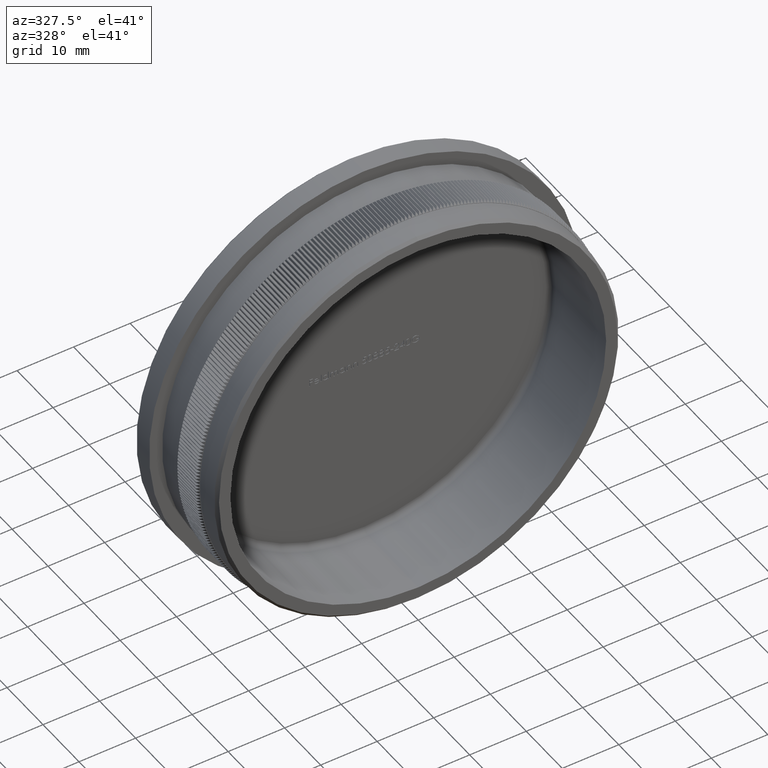
[diagram: clean part render]
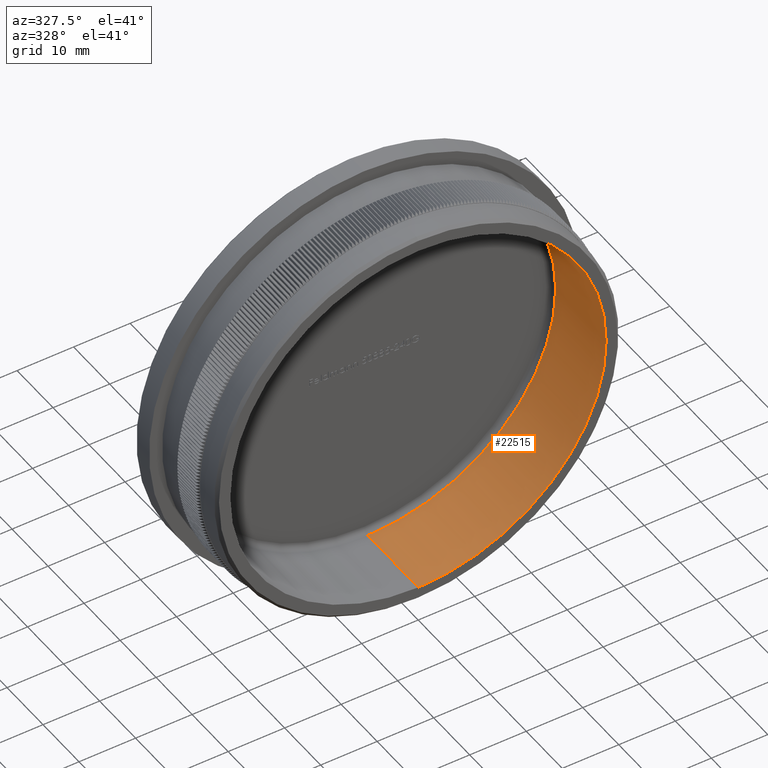
[diagram: same view with one face highlighted and labeled with its STEP entity id]
A machine part, auxiliary view. The second image highlights one B-rep face of the part: STEP entity #22515.
In plain terms, the highlighted cylindrical surface (partial cylindrical patch) has radius 33.25 mm, axis along (-0, 1, -0).
Its self-contained STEP definition (entity closure, byte-faithful):
#4616 = CARTESIAN_POINT ( 'NONE',  ( 4.071950607164949200E-015, 18.99999999999999600, -33.24999999999999300 ) ) ;
#6387 = ORIENTED_EDGE ( 'NONE', *, *, #25118, .T. ) ;
#9133 = VECTOR ( 'NONE', #64131, 1000.000000000000000 ) ;
#10910 = EDGE_CURVE ( 'NONE', #70560, #63763, #72615, .T. ) ;
#11079 = DIRECTION ( 'NONE',  ( 0.0000000000000000000, 0.0000000000000000000, 1.000000000000000000 ) ) ;
#11906 = CARTESIAN_POINT ( 'NONE',  ( 4.071950607164949200E-015, 13.99999999999999800, -33.24999999999999300 ) ) ;
#16019 = CYLINDRICAL_SURFACE ( 'NONE', #72743, 33.24999999999999300 ) ;
#20636 = EDGE_LOOP ( 'NONE', ( #29246, #39157, #6387, #89291 ) ) ;
#22515 = ADVANCED_FACE ( 'NONE', ( #36538 ), #16019, .F. ) ;
#24974 = DIRECTION ( 'NONE',  ( -0.0000000000000000000, 1.000000000000000000, -0.0000000000000000000 ) ) ;
#25118 = EDGE_CURVE ( 'NONE', #70560, #85469, #29680, .T. ) ;
#26720 = CARTESIAN_POINT ( 'NONE',  ( 0.0000000000000000000, 18.99999999999999600, 0.0000000000000000000 ) ) ;
#26946 = CARTESIAN_POINT ( 'NONE',  ( 4.071950607164949200E-015, 0.0000000000000000000, -33.24999999999999300 ) ) ;
#29246 = ORIENTED_EDGE ( 'NONE', *, *, #82600, .F. ) ;
#29680 = LINE ( 'NONE', #57151, #9133 ) ;
#29851 = DIRECTION ( 'NONE',  ( 0.0000000000000000000, 0.0000000000000000000, 1.000000000000000000 ) ) ;
#32178 = AXIS2_PLACEMENT_3D ( 'NONE', #51191, #24974, #11079 ) ;
#33048 = DIRECTION ( 'NONE',  ( -0.0000000000000000000, 1.000000000000000000, -0.0000000000000000000 ) ) ;
#35164 = LINE ( 'NONE', #4616, #38375 ) ;
#35377 = CARTESIAN_POINT ( 'NONE',  ( 0.0000000000000000000, 0.0000000000000000000, 33.24999999999999300 ) ) ;
#36538 = FACE_OUTER_BOUND ( 'NONE', #20636, .T. ) ;
#38375 = VECTOR ( 'NONE', #52851, 1000.000000000000000 ) ;
#39157 = ORIENTED_EDGE ( 'NONE', *, *, #10910, .F. ) ;
#50601 = DIRECTION ( 'NONE',  ( -0.0000000000000000000, 1.000000000000000000, -0.0000000000000000000 ) ) ;
#51191 = CARTESIAN_POINT ( 'NONE',  ( 0.0000000000000000000, 0.0000000000000000000, 0.0000000000000000000 ) ) ;
#52851 = DIRECTION ( 'NONE',  ( -0.0000000000000000000, 1.000000000000000000, -0.0000000000000000000 ) ) ;
#52906 = DIRECTION ( 'NONE',  ( 0.0000000000000000000, 0.0000000000000000000, 1.000000000000000000 ) ) ;
#55580 = EDGE_CURVE ( 'NONE', #85469, #58686, #68120, .T. ) ;
#57151 = CARTESIAN_POINT ( 'NONE',  ( 0.0000000000000000000, 18.99999999999999600, 33.24999999999999300 ) ) ;
#58686 = VERTEX_POINT ( 'NONE', #11906 ) ;
#63763 = VERTEX_POINT ( 'NONE', #26946 ) ;
#64131 = DIRECTION ( 'NONE',  ( -0.0000000000000000000, 1.000000000000000000, -0.0000000000000000000 ) ) ;
#65257 = CARTESIAN_POINT ( 'NONE',  ( 0.0000000000000000000, 13.99999999999999800, 33.24999999999999300 ) ) ;
#68120 = CIRCLE ( 'NONE', #87086, 33.24999999999999300 ) ;
#70560 = VERTEX_POINT ( 'NONE', #35377 ) ;
#72615 = CIRCLE ( 'NONE', #32178, 33.24999999999999300 ) ;
#72743 = AXIS2_PLACEMENT_3D ( 'NONE', #26720, #33048, #52906 ) ;
#78386 = CARTESIAN_POINT ( 'NONE',  ( 0.0000000000000000000, 13.99999999999999800, 0.0000000000000000000 ) ) ;
#82600 = EDGE_CURVE ( 'NONE', #63763, #58686, #35164, .T. ) ;
#85469 = VERTEX_POINT ( 'NONE', #65257 ) ;
#87086 = AXIS2_PLACEMENT_3D ( 'NONE', #78386, #50601, #29851 ) ;
#89291 = ORIENTED_EDGE ( 'NONE', *, *, #55580, .T. ) ;